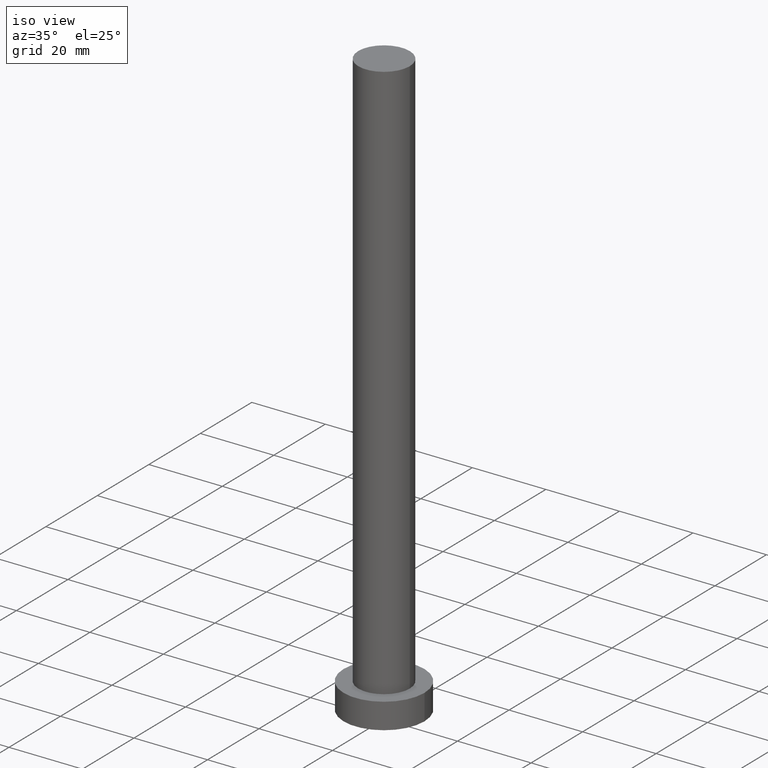
[diagram: clean part render]
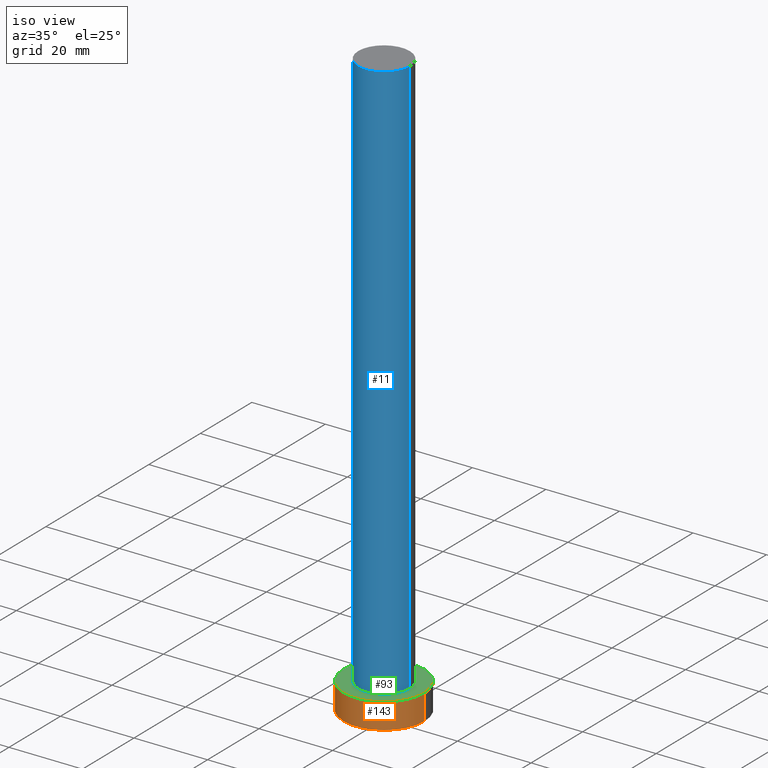
[diagram: same view with three faces highlighted in distinct colors, each labeled with its STEP entity id]
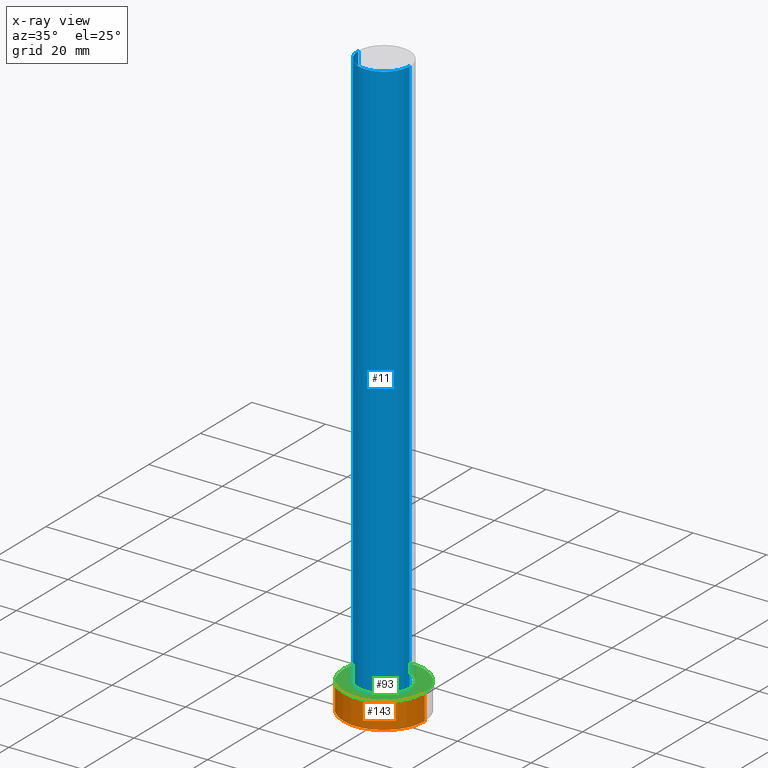
[diagram: x-ray of the same camera — body ghosted, the three highlighted faces saturated]
A machine part, iso view with three faces highlighted in distinct colors.
The next image is the same camera in x-ray (body ghosted, the three faces saturated) — at least one of them is partly hidden behind the body in this view.
Their STEP definitions:

[orange] entity #143 — the highlighted cylindrical surface (partial cylindrical patch) has radius 11 mm, axis along (-0, -0, -1).
#2 = CARTESIAN_POINT ( 'NONE',  ( 0.000000000000000000, 0.000000000000000000, 7.000000000000000000 ) ) ;
#3 = LINE ( 'NONE', #47, #178 ) ;
#9 = DIRECTION ( 'NONE',  ( -0.000000000000000000, -0.000000000000000000, -1.000000000000000000 ) ) ;
#23 = VERTEX_POINT ( 'NONE', #98 ) ;
#25 = CARTESIAN_POINT ( 'NONE',  ( 11.00000000000000000, 1.347111479062088405E-15, 7.000000000000000000 ) ) ;
#29 = EDGE_CURVE ( 'NONE', #201, #81, #53, .T. ) ;
#35 = DIRECTION ( 'NONE',  ( 0.000000000000000000, 0.000000000000000000, 1.000000000000000000 ) ) ;
#47 = CARTESIAN_POINT ( 'NONE',  ( 11.00000000000000000, 1.347111479062088405E-15, 7.000000000000000000 ) ) ;
#48 = DIRECTION ( 'NONE',  ( 1.000000000000000000, 0.000000000000000000, 0.000000000000000000 ) ) ;
#53 = CIRCLE ( 'NONE', #164, 11.00000000000000000 ) ;
#58 = EDGE_LOOP ( 'NONE', ( #134, #218, #115, #154 ) ) ;
#81 = VERTEX_POINT ( 'NONE', #25 ) ;
#86 = DIRECTION ( 'NONE',  ( 1.000000000000000000, 0.000000000000000000, 0.000000000000000000 ) ) ;
#98 = CARTESIAN_POINT ( 'NONE',  ( 11.00000000000000000, 1.347111479062088405E-15, 0.000000000000000000 ) ) ;
#105 = DIRECTION ( 'NONE',  ( 0.000000000000000000, 0.000000000000000000, 1.000000000000000000 ) ) ;
#109 = EDGE_CURVE ( 'NONE', #81, #23, #3, .T. ) ;
#115 = ORIENTED_EDGE ( 'NONE', *, *, #150, .T. ) ;
#132 = VECTOR ( 'NONE', #241, 1000.000000000000000 ) ;
#134 = ORIENTED_EDGE ( 'NONE', *, *, #109, .F. ) ;
#135 = EDGE_CURVE ( 'NONE', #200, #23, #228, .T. ) ;
#141 = DIRECTION ( 'NONE',  ( -0.000000000000000000, -0.000000000000000000, -1.000000000000000000 ) ) ;
#142 = LINE ( 'NONE', #243, #132 ) ;
#143 = ADVANCED_FACE ( 'NONE', ( #145 ), #185, .T. ) ;
#144 = CARTESIAN_POINT ( 'NONE',  ( 0.000000000000000000, 0.000000000000000000, 0.000000000000000000 ) ) ;
#145 = FACE_OUTER_BOUND ( 'NONE', #58, .T. ) ;
#149 = AXIS2_PLACEMENT_3D ( 'NONE', #144, #105, #86 ) ;
#150 = EDGE_CURVE ( 'NONE', #201, #200, #142, .T. ) ;
#151 = CARTESIAN_POINT ( 'NONE',  ( 0.000000000000000000, 0.000000000000000000, 7.000000000000000000 ) ) ;
#154 = ORIENTED_EDGE ( 'NONE', *, *, #135, .T. ) ;
#164 = AXIS2_PLACEMENT_3D ( 'NONE', #151, #35, #48 ) ;
#178 = VECTOR ( 'NONE', #141, 1000.000000000000000 ) ;
#183 = DIRECTION ( 'NONE',  ( -1.000000000000000000, 0.000000000000000000, 0.000000000000000000 ) ) ;
#185 = CYLINDRICAL_SURFACE ( 'NONE', #244, 11.00000000000000000 ) ;
#186 = CARTESIAN_POINT ( 'NONE',  ( -11.00000000000000000, 0.000000000000000000, 7.000000000000000000 ) ) ;
#200 = VERTEX_POINT ( 'NONE', #223 ) ;
#201 = VERTEX_POINT ( 'NONE', #186 ) ;
#218 = ORIENTED_EDGE ( 'NONE', *, *, #29, .F. ) ;
#223 = CARTESIAN_POINT ( 'NONE',  ( -11.00000000000000000, 0.000000000000000000, 0.000000000000000000 ) ) ;
#228 = CIRCLE ( 'NONE', #149, 11.00000000000000000 ) ;
#241 = DIRECTION ( 'NONE',  ( -0.000000000000000000, -0.000000000000000000, -1.000000000000000000 ) ) ;
#243 = CARTESIAN_POINT ( 'NONE',  ( -11.00000000000000000, 0.000000000000000000, 7.000000000000000000 ) ) ;
#244 = AXIS2_PLACEMENT_3D ( 'NONE', #2, #9, #183 ) ;

[blue] entity #11 — the highlighted cylindrical surface (edge-blend (fillet) strip) has radius 7 mm, axis along (-0, -0, -1).
#6 = VECTOR ( 'NONE', #203, 1000.000000000000000 ) ;
#11 = ADVANCED_FACE ( 'NONE', ( #255 ), #176, .T. ) ;
#17 = VECTOR ( 'NONE', #212, 1000.000000000000000 ) ;
#18 = DIRECTION ( 'NONE',  ( -0.000000000000000000, -0.000000000000000000, -1.000000000000000000 ) ) ;
#21 = DIRECTION ( 'NONE',  ( -1.000000000000000000, 0.000000000000000000, 0.000000000000000000 ) ) ;
#26 = EDGE_CURVE ( 'NONE', #177, #116, #80, .T. ) ;
#27 = DIRECTION ( 'NONE',  ( 1.000000000000000000, 0.000000000000000000, 0.000000000000000000 ) ) ;
#42 = ORIENTED_EDGE ( 'NONE', *, *, #253, .T. ) ;
#45 = CARTESIAN_POINT ( 'NONE',  ( 0.000000000000000000, 0.000000000000000000, 7.000000000000000000 ) ) ;
#46 = EDGE_CURVE ( 'NONE', #250, #234, #106, .T. ) ;
#49 = CIRCLE ( 'NONE', #220, 7.000000000000000888 ) ;
#59 = EDGE_LOOP ( 'NONE', ( #173, #254, #232, #42 ) ) ;
#63 = EDGE_CURVE ( 'NONE', #177, #250, #49, .T. ) ;
#68 = DIRECTION ( 'NONE',  ( 0.000000000000000000, 0.000000000000000000, 1.000000000000000000 ) ) ;
#80 = LINE ( 'NONE', #153, #17 ) ;
#90 = CARTESIAN_POINT ( 'NONE',  ( -7.000000000000000888, 0.000000000000000000, 160.0000000000000000 ) ) ;
#104 = CARTESIAN_POINT ( 'NONE',  ( 7.000000000000000888, 8.572527594031474176E-16, 7.000000000000000000 ) ) ;
#106 = LINE ( 'NONE', #219, #6 ) ;
#107 = CARTESIAN_POINT ( 'NONE',  ( -7.000000000000000888, 0.000000000000000000, 7.000000000000000000 ) ) ;
#116 = VERTEX_POINT ( 'NONE', #107 ) ;
#125 = CARTESIAN_POINT ( 'NONE',  ( 0.000000000000000000, 0.000000000000000000, 160.0000000000000000 ) ) ;
#128 = AXIS2_PLACEMENT_3D ( 'NONE', #45, #237, #139 ) ;
#133 = CARTESIAN_POINT ( 'NONE',  ( 0.000000000000000000, 0.000000000000000000, 160.0000000000000000 ) ) ;
#139 = DIRECTION ( 'NONE',  ( 1.000000000000000000, 0.000000000000000000, 0.000000000000000000 ) ) ;
#140 = AXIS2_PLACEMENT_3D ( 'NONE', #133, #18, #21 ) ;
#153 = CARTESIAN_POINT ( 'NONE',  ( -7.000000000000000888, 0.000000000000000000, 160.0000000000000000 ) ) ;
#155 = CARTESIAN_POINT ( 'NONE',  ( 7.000000000000000888, 8.572527594031474176E-16, 160.0000000000000000 ) ) ;
#173 = ORIENTED_EDGE ( 'NONE', *, *, #46, .F. ) ;
#176 = CYLINDRICAL_SURFACE ( 'NONE', #140, 7.000000000000000888 ) ;
#177 = VERTEX_POINT ( 'NONE', #90 ) ;
#184 = CIRCLE ( 'NONE', #128, 7.000000000000000888 ) ;
#203 = DIRECTION ( 'NONE',  ( -0.000000000000000000, -0.000000000000000000, -1.000000000000000000 ) ) ;
#212 = DIRECTION ( 'NONE',  ( -0.000000000000000000, -0.000000000000000000, -1.000000000000000000 ) ) ;
#219 = CARTESIAN_POINT ( 'NONE',  ( 7.000000000000000888, 8.572527594031474176E-16, 160.0000000000000000 ) ) ;
#220 = AXIS2_PLACEMENT_3D ( 'NONE', #125, #68, #27 ) ;
#232 = ORIENTED_EDGE ( 'NONE', *, *, #26, .T. ) ;
#234 = VERTEX_POINT ( 'NONE', #104 ) ;
#237 = DIRECTION ( 'NONE',  ( 0.000000000000000000, 0.000000000000000000, 1.000000000000000000 ) ) ;
#250 = VERTEX_POINT ( 'NONE', #155 ) ;
#253 = EDGE_CURVE ( 'NONE', #116, #234, #184, .T. ) ;
#254 = ORIENTED_EDGE ( 'NONE', *, *, #63, .F. ) ;
#255 = FACE_OUTER_BOUND ( 'NONE', #59, .T. ) ;

[green] entity #93 — the highlighted planar face has unit normal (0, 0, 1).
#5 = DIRECTION ( 'NONE',  ( 0.000000000000000000, 0.000000000000000000, 1.000000000000000000 ) ) ;
#19 = EDGE_CURVE ( 'NONE', #234, #116, #88, .T. ) ;
#20 = DIRECTION ( 'NONE',  ( 1.000000000000000000, 0.000000000000000000, 0.000000000000000000 ) ) ;
#25 = CARTESIAN_POINT ( 'NONE',  ( 11.00000000000000000, 1.347111479062088405E-15, 7.000000000000000000 ) ) ;
#28 = FACE_BOUND ( 'NONE', #199, .T. ) ;
#29 = EDGE_CURVE ( 'NONE', #201, #81, #53, .T. ) ;
#35 = DIRECTION ( 'NONE',  ( 0.000000000000000000, 0.000000000000000000, 1.000000000000000000 ) ) ;
#39 = AXIS2_PLACEMENT_3D ( 'NONE', #225, #206, #179 ) ;
#45 = CARTESIAN_POINT ( 'NONE',  ( 0.000000000000000000, 0.000000000000000000, 7.000000000000000000 ) ) ;
#48 = DIRECTION ( 'NONE',  ( 1.000000000000000000, 0.000000000000000000, 0.000000000000000000 ) ) ;
#53 = CIRCLE ( 'NONE', #164, 11.00000000000000000 ) ;
#64 = PLANE ( 'NONE',  #83 ) ;
#69 = AXIS2_PLACEMENT_3D ( 'NONE', #82, #97, #20 ) ;
#77 = EDGE_LOOP ( 'NONE', ( #233, #84 ) ) ;
#81 = VERTEX_POINT ( 'NONE', #25 ) ;
#82 = CARTESIAN_POINT ( 'NONE',  ( 0.000000000000000000, 0.000000000000000000, 7.000000000000000000 ) ) ;
#83 = AXIS2_PLACEMENT_3D ( 'NONE', #119, #5, #87 ) ;
#84 = ORIENTED_EDGE ( 'NONE', *, *, #246, .T. ) ;
#87 = DIRECTION ( 'NONE',  ( 1.000000000000000000, 0.000000000000000000, -0.000000000000000000 ) ) ;
#88 = CIRCLE ( 'NONE', #69, 7.000000000000000888 ) ;
#93 = ADVANCED_FACE ( 'NONE', ( #28, #205 ), #64, .T. ) ;
#97 = DIRECTION ( 'NONE',  ( 0.000000000000000000, 0.000000000000000000, 1.000000000000000000 ) ) ;
#104 = CARTESIAN_POINT ( 'NONE',  ( 7.000000000000000888, 8.572527594031474176E-16, 7.000000000000000000 ) ) ;
#107 = CARTESIAN_POINT ( 'NONE',  ( -7.000000000000000888, 0.000000000000000000, 7.000000000000000000 ) ) ;
#116 = VERTEX_POINT ( 'NONE', #107 ) ;
#119 = CARTESIAN_POINT ( 'NONE',  ( 0.000000000000000000, 0.000000000000000000, 7.000000000000000000 ) ) ;
#128 = AXIS2_PLACEMENT_3D ( 'NONE', #45, #237, #139 ) ;
#137 = ORIENTED_EDGE ( 'NONE', *, *, #19, .F. ) ;
#138 = ORIENTED_EDGE ( 'NONE', *, *, #253, .F. ) ;
#139 = DIRECTION ( 'NONE',  ( 1.000000000000000000, 0.000000000000000000, 0.000000000000000000 ) ) ;
#151 = CARTESIAN_POINT ( 'NONE',  ( 0.000000000000000000, 0.000000000000000000, 7.000000000000000000 ) ) ;
#164 = AXIS2_PLACEMENT_3D ( 'NONE', #151, #35, #48 ) ;
#179 = DIRECTION ( 'NONE',  ( 1.000000000000000000, 0.000000000000000000, 0.000000000000000000 ) ) ;
#184 = CIRCLE ( 'NONE', #128, 7.000000000000000888 ) ;
#186 = CARTESIAN_POINT ( 'NONE',  ( -11.00000000000000000, 0.000000000000000000, 7.000000000000000000 ) ) ;
#199 = EDGE_LOOP ( 'NONE', ( #138, #137 ) ) ;
#201 = VERTEX_POINT ( 'NONE', #186 ) ;
#205 = FACE_OUTER_BOUND ( 'NONE', #77, .T. ) ;
#206 = DIRECTION ( 'NONE',  ( 0.000000000000000000, 0.000000000000000000, 1.000000000000000000 ) ) ;
#225 = CARTESIAN_POINT ( 'NONE',  ( 0.000000000000000000, 0.000000000000000000, 7.000000000000000000 ) ) ;
#233 = ORIENTED_EDGE ( 'NONE', *, *, #29, .T. ) ;
#234 = VERTEX_POINT ( 'NONE', #104 ) ;
#237 = DIRECTION ( 'NONE',  ( 0.000000000000000000, 0.000000000000000000, 1.000000000000000000 ) ) ;
#240 = CIRCLE ( 'NONE', #39, 11.00000000000000000 ) ;
#246 = EDGE_CURVE ( 'NONE', #81, #201, #240, .T. ) ;
#253 = EDGE_CURVE ( 'NONE', #116, #234, #184, .T. ) ;